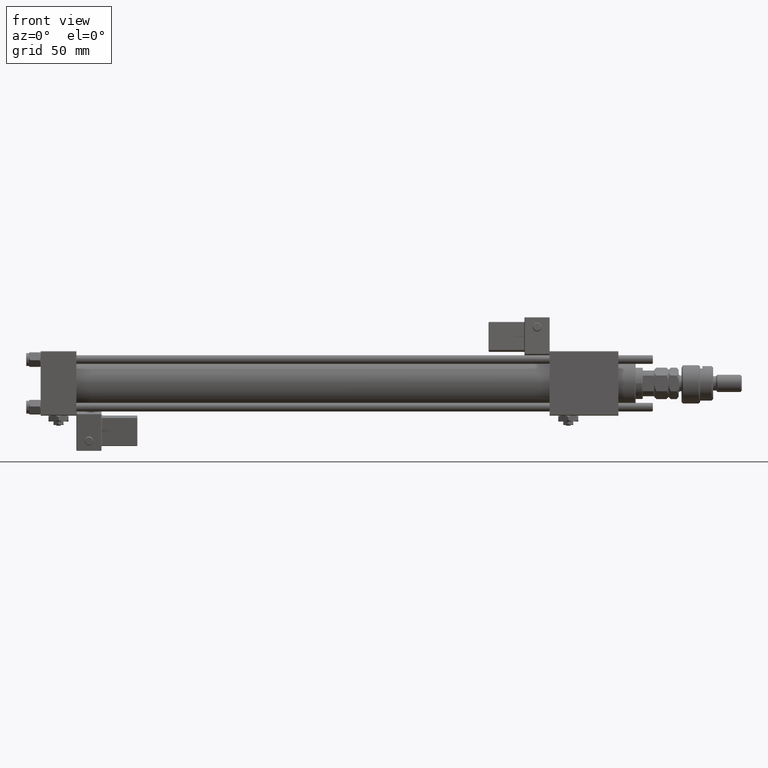
[diagram: clean part render]
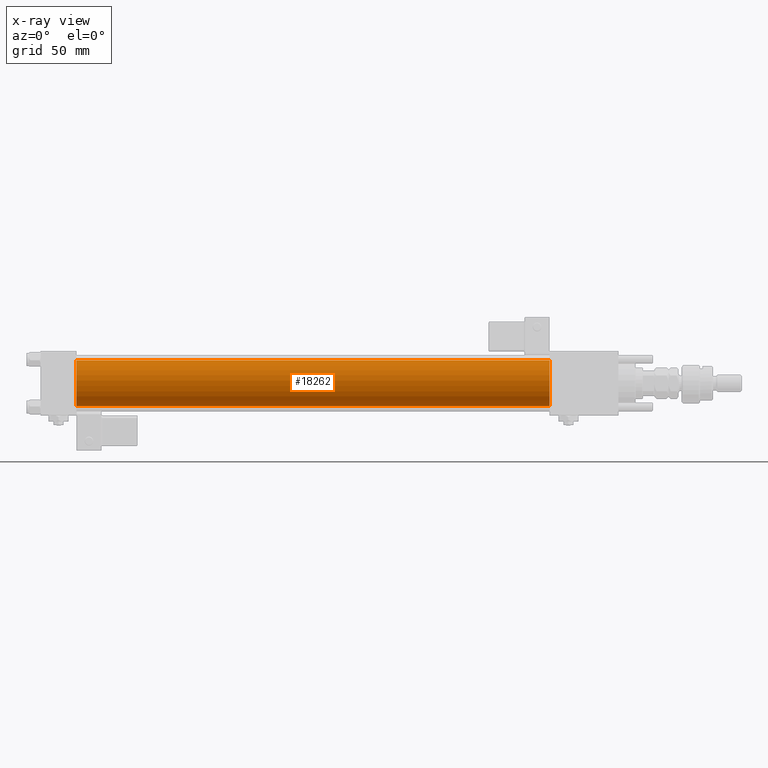
[diagram: x-ray — body ghosted, one internal face saturated and labeled with its STEP entity id]
A machine part, front view, then the same camera in x-ray: the body is ghosted and one INTERNAL B-rep face — a face not visible from any outside direction — is saturated and labeled: STEP entity #18262.
In plain terms, the highlighted cylindrical surface (edge-blend (fillet) strip) has radius 16 mm, axis along (-1, -0, -0).
Its self-contained STEP definition (entity closure, byte-faithful):
#188 = DIRECTION ( 'NONE',  ( -1.000000000000000000, -0.000000000000000000, -0.000000000000000000 ) ) ;
#2995 = CARTESIAN_POINT ( 'NONE',  ( 25.00000000000000000, -2.602085213965210642E-15, 16.00000000000000000 ) ) ;
#3576 = DIRECTION ( 'NONE',  ( 1.000000000000000000, 0.000000000000000000, 0.000000000000000000 ) ) ;
#3948 = AXIS2_PLACEMENT_3D ( 'NONE', #43349, #3576, #23910 ) ;
#5924 = EDGE_LOOP ( 'NONE', ( #9936, #35104, #7888, #12469 ) ) ;
#7888 = ORIENTED_EDGE ( 'NONE', *, *, #52308, .F. ) ;
#8971 = CARTESIAN_POINT ( 'NONE',  ( 25.00000000000000000, -6.426503353294456087E-16, -16.00000000000000000 ) ) ;
#9936 = ORIENTED_EDGE ( 'NONE', *, *, #59139, .T. ) ;
#12469 = ORIENTED_EDGE ( 'NONE', *, *, #56537, .F. ) ;
#13348 = AXIS2_PLACEMENT_3D ( 'NONE', #58442, #58760, #33859 ) ;
#15801 = CYLINDRICAL_SURFACE ( 'NONE', #26266, 16.00000000000000000 ) ;
#18262 = ADVANCED_FACE ( 'NONE', ( #60081 ), #15801, .F. ) ;
#23910 = DIRECTION ( 'NONE',  ( 0.000000000000000000, 0.000000000000000000, -1.000000000000000000 ) ) ;
#25381 = LINE ( 'NONE', #59993, #60703 ) ;
#25443 = VERTEX_POINT ( 'NONE', #33942 ) ;
#26141 = VERTEX_POINT ( 'NONE', #8971 ) ;
#26266 = AXIS2_PLACEMENT_3D ( 'NONE', #30021, #45224, #44893 ) ;
#27976 = LINE ( 'NONE', #47704, #59883 ) ;
#29878 = EDGE_CURVE ( 'NONE', #25443, #26141, #25381, .T. ) ;
#30021 = CARTESIAN_POINT ( 'NONE',  ( 355.0000000000000568, -2.602085213965210642E-15, 0.000000000000000000 ) ) ;
#33859 = DIRECTION ( 'NONE',  ( 0.000000000000000000, 0.000000000000000000, -1.000000000000000000 ) ) ;
#33942 = CARTESIAN_POINT ( 'NONE',  ( 355.0000000000000568, -6.426503353294456087E-16, -16.00000000000000000 ) ) ;
#35028 = VERTEX_POINT ( 'NONE', #2995 ) ;
#35104 = ORIENTED_EDGE ( 'NONE', *, *, #29878, .T. ) ;
#36835 = CARTESIAN_POINT ( 'NONE',  ( 355.0000000000000568, -2.602085213965210642E-15, 16.00000000000000000 ) ) ;
#43349 = CARTESIAN_POINT ( 'NONE',  ( 25.00000000000000000, -2.602085213965210642E-15, 0.000000000000000000 ) ) ;
#44893 = DIRECTION ( 'NONE',  ( 0.000000000000000000, 0.000000000000000000, 1.000000000000000000 ) ) ;
#45220 = CIRCLE ( 'NONE', #3948, 16.00000000000000000 ) ;
#45224 = DIRECTION ( 'NONE',  ( -1.000000000000000000, -0.000000000000000000, -0.000000000000000000 ) ) ;
#47704 = CARTESIAN_POINT ( 'NONE',  ( 355.0000000000000568, -2.602085213965210642E-15, 16.00000000000000000 ) ) ;
#50451 = VERTEX_POINT ( 'NONE', #36835 ) ;
#52308 = EDGE_CURVE ( 'NONE', #35028, #26141, #45220, .T. ) ;
#56537 = EDGE_CURVE ( 'NONE', #50451, #35028, #27976, .T. ) ;
#58442 = CARTESIAN_POINT ( 'NONE',  ( 355.0000000000000568, -2.602085213965210642E-15, 0.000000000000000000 ) ) ;
#58760 = DIRECTION ( 'NONE',  ( 1.000000000000000000, 0.000000000000000000, 0.000000000000000000 ) ) ;
#59139 = EDGE_CURVE ( 'NONE', #50451, #25443, #60848, .T. ) ;
#59883 = VECTOR ( 'NONE', #63511, 1000.000000000000000 ) ;
#59993 = CARTESIAN_POINT ( 'NONE',  ( 355.0000000000000568, -6.426503353294456087E-16, -16.00000000000000000 ) ) ;
#60081 = FACE_OUTER_BOUND ( 'NONE', #5924, .T. ) ;
#60703 = VECTOR ( 'NONE', #188, 1000.000000000000000 ) ;
#60848 = CIRCLE ( 'NONE', #13348, 16.00000000000000000 ) ;
#63511 = DIRECTION ( 'NONE',  ( -1.000000000000000000, -0.000000000000000000, -0.000000000000000000 ) ) ;